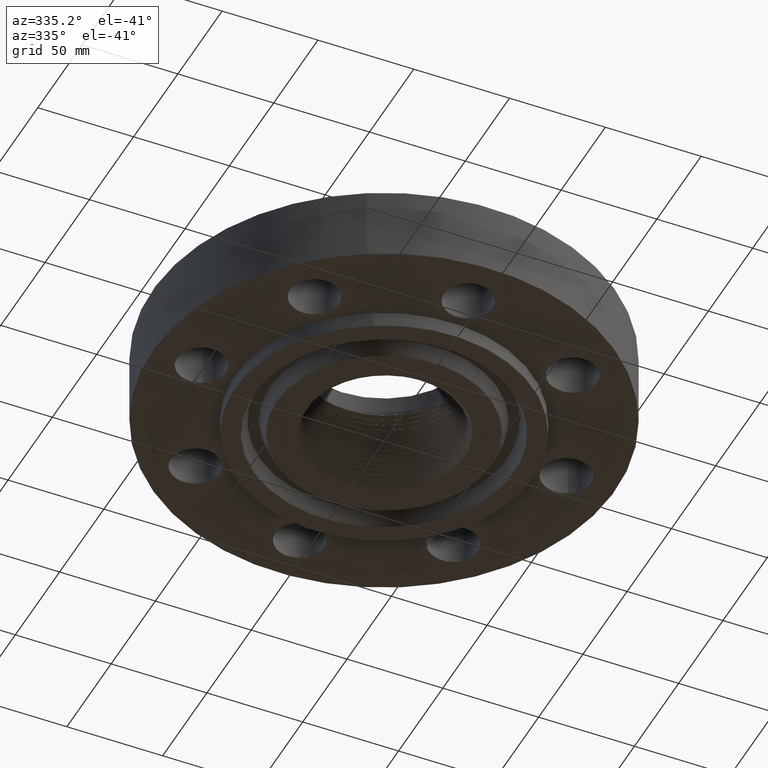
[diagram: clean part render]
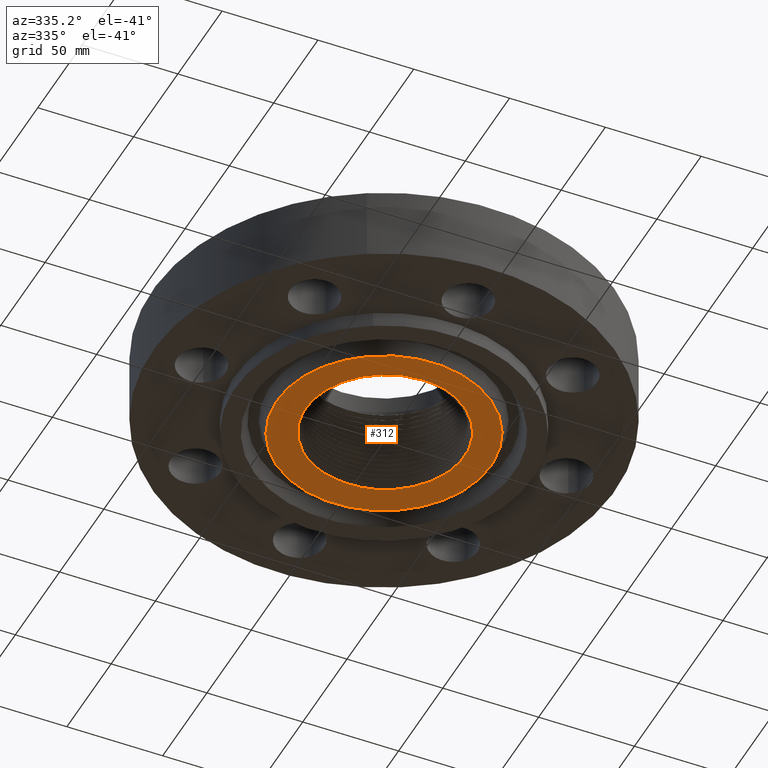
[diagram: same view with one face highlighted and labeled with its STEP entity id]
A machine part, auxiliary view. The second image highlights one B-rep face of the part: STEP entity #312.
In plain terms, the highlighted planar face has unit normal (0, 0, -1).
Its self-contained STEP definition (entity closure, byte-faithful):
#180=AXIS2_PLACEMENT_3D('Plane Axis2P3D',#177,#178,#179) ;
#184=AXIS2_PLACEMENT_3D('Circle Axis2P3D',#182,#183,$) ;
#193=AXIS2_PLACEMENT_3D('Circle Axis2P3D',#191,#192,$) ;
#300=AXIS2_PLACEMENT_3D('Circle Axis2P3D',#298,#299,$) ;
#177=CARTESIAN_POINT('Axis2P3D Location',(0.,0.,-0.312500000001)) ;
#182=CARTESIAN_POINT('Axis2P3D Location',(-2.79741234551E-016,-2.09805925913E-016,-0.312500000001)) ;
#186=CARTESIAN_POINT('Vertex',(-1.0562224041,1.93340214211,-0.312500000001)) ;
#188=CARTESIAN_POINT('Vertex',(1.0562224041,-1.93340214211,-0.312500000001)) ;
#191=CARTESIAN_POINT('Axis2P3D Location',(0.,1.39870617276E-016,-0.312500000001)) ;
#201=CARTESIAN_POINT('Control Point',(-0.764045136198,1.39863086369,-0.312500000001)) ;
#202=CARTESIAN_POINT('Control Point',(-0.684227951429,1.44028051207,-0.312500000001)) ;
#203=CARTESIAN_POINT('Control Point',(-0.60152243333,1.47626518171,-0.312500000001)) ;
#204=CARTESIAN_POINT('Control Point',(-0.516463407196,1.50631184712,-0.312500000001)) ;
#205=CARTESIAN_POINT('Control Point',(-0.42962532588,1.53022449648,-0.312500000001)) ;
#206=CARTESIAN_POINT('Control Point',(-0.341596641121,1.54789132813,-0.312500000001)) ;
#207=CARTESIAN_POINT('Vertex',(-0.764045136198,1.39863086369,-0.312500000001)) ;
#209=CARTESIAN_POINT('Vertex',(-0.341596681107,1.54789137755,-0.312500022808)) ;
#213=CARTESIAN_POINT('Control Point',(-4.24247231396E-006,-1.67387552204,-0.312500000001)) ;
#214=CARTESIAN_POINT('Control Point',(-0.134224530825,-1.67144198216,-0.312500000001)) ;
#215=CARTESIAN_POINT('Control Point',(-0.26808429547,-1.65555300793,-0.312500000001)) ;
#216=CARTESIAN_POINT('Control Point',(-0.399742150873,-1.62626517311,-0.312500000001)) ;
#217=CARTESIAN_POINT('Control Point',(-0.655176795,-1.54171205105,-0.312500000001)) ;
#218=CARTESIAN_POINT('Control Point',(-0.8880971913,-1.40828155489,-0.312500000001)) ;
#219=CARTESIAN_POINT('Control Point',(-0.997346285092,-1.33006545072,-0.312500000001)) ;
#220=CARTESIAN_POINT('Control Point',(-1.19840869766,-1.15285018385,-0.312500000001)) ;
#221=CARTESIAN_POINT('Control Point',(-1.35969398719,-0.939435093799,-0.312500000001)) ;
#222=CARTESIAN_POINT('Control Point',(-1.42919954157,-0.824977696152,-0.312500000001)) ;
#223=CARTESIAN_POINT('Control Point',(-1.54393641757,-0.583887789867,-0.312500000001)) ;
#224=CARTESIAN_POINT('Control Point',(-1.60786742992,-0.325027754984,-0.312500000001)) ;
#225=CARTESIAN_POINT('Control Point',(-1.62652038059,-0.192920434485,-0.312500000001)) ;
#226=CARTESIAN_POINT('Control Point',(-1.6341541153,0.00654499916701,-0.312500000001)) ;
#227=CARTESIAN_POINT('Control Point',(-1.61156519682,0.203898139981,-0.312500000001)) ;
#228=CARTESIAN_POINT('Control Point',(-1.60069948973,0.269187687087,-0.312500000001)) ;
#229=CARTESIAN_POINT('Control Point',(-1.55820655519,0.462931410085,-0.312500000001)) ;
#230=CARTESIAN_POINT('Control Point',(-1.48658270785,0.648413484583,-0.312500000001)) ;
#231=CARTESIAN_POINT('Control Point',(-1.42638992711,0.766626304015,-0.312500000001)) ;
#232=CARTESIAN_POINT('Control Point',(-1.28208737297,0.990042689045,-0.312500000001)) ;
#233=CARTESIAN_POINT('Control Point',(-1.09565641455,1.17906295094,-0.312500000001)) ;
#234=CARTESIAN_POINT('Control Point',(-0.992495860647,1.26392005425,-0.312500000001)) ;
#235=CARTESIAN_POINT('Control Point',(-0.881391379585,1.33739806278,-0.312500000001)) ;
#236=CARTESIAN_POINT('Control Point',(-0.764045136198,1.39863086369,-0.312500000001)) ;
#237=CARTESIAN_POINT('Vertex',(-4.24247231466E-006,-1.67387552204,-0.312500000001)) ;
#241=CARTESIAN_POINT('Control Point',(0.545381059272,-1.59311812307,-0.312500000001)) ;
#242=CARTESIAN_POINT('Control Point',(0.439805501715,-1.62714791651,-0.312500000001)) ;
#243=CARTESIAN_POINT('Control Point',(0.331501726328,-1.65245900067,-0.312500000001)) ;
#244=CARTESIAN_POINT('Control Point',(0.221424791367,-1.66875097735,-0.312500000001)) ;
#245=CARTESIAN_POINT('Control Point',(0.110587003885,-1.67588064556,-0.312500000001)) ;
#246=CARTESIAN_POINT('Control Point',(-4.24247231477E-006,-1.67387552204,-0.312500000001)) ;
#247=CARTESIAN_POINT('Vertex',(0.545381059272,-1.59311812307,-0.312500000001)) ;
#251=CARTESIAN_POINT('Control Point',(0.545381059272,-1.59311812307,-0.312500000001)) ;
#252=CARTESIAN_POINT('Control Point',(0.599185308358,-1.57349355165,-0.312500000001)) ;
#253=CARTESIAN_POINT('Control Point',(0.652132527607,-1.55158927789,-0.312500000001)) ;
#254=CARTESIAN_POINT('Control Point',(0.704093489724,-1.52745383678,-0.312500000001)) ;
#255=CARTESIAN_POINT('Control Point',(0.754942751533,-1.50114694288,-0.312500000001)) ;
#256=CARTESIAN_POINT('Control Point',(0.804560826023,-1.47273867143,-0.312500000001)) ;
#257=CARTESIAN_POINT('Vertex',(0.804560826023,-1.47273867143,-0.312500000001)) ;
#261=CARTESIAN_POINT('Control Point',(0.804560826023,-1.47273867143,-0.312500000001)) ;
#262=CARTESIAN_POINT('Control Point',(0.921182367755,-1.40596831727,-0.312500000001)) ;
#263=CARTESIAN_POINT('Control Point',(1.03100355149,-1.32758843056,-0.312500000001)) ;
#264=CARTESIAN_POINT('Control Point',(1.13246857639,-1.23850832963,-0.312500000001)) ;
#265=CARTESIAN_POINT('Control Point',(1.31595456069,-1.04140431418,-0.312500000001)) ;
#266=CARTESIAN_POINT('Control Point',(1.45625891427,-0.812190779136,-0.312500000001)) ;
#267=CARTESIAN_POINT('Control Point',(1.51454586059,-0.690990554184,-0.312500000001)) ;
#268=CARTESIAN_POINT('Control Point',(1.58869452424,-0.486049050667,-0.312500000001)) ;
#269=CARTESIAN_POINT('Control Point',(1.62830094846,-0.272774024449,-0.312500000001)) ;
#270=CARTESIAN_POINT('Control Point',(1.63831939421,-0.18994168638,-0.312500000001)) ;
#271=CARTESIAN_POINT('Control Point',(1.65069141603,0.026405411075,-0.312500000001)) ;
#272=CARTESIAN_POINT('Control Point',(1.62753349302,0.242073336625,-0.312500000001)) ;
#273=CARTESIAN_POINT('Control Point',(1.59985686189,0.372738394507,-0.312500000001)) ;
#274=CARTESIAN_POINT('Control Point',(1.51846177818,0.62643238309,-0.312500000001)) ;
#275=CARTESIAN_POINT('Control Point',(1.38804200196,0.857982466216,-0.312500000001)) ;
#276=CARTESIAN_POINT('Control Point',(1.31127804288,0.966638453406,-0.312500000001)) ;
#277=CARTESIAN_POINT('Control Point',(1.13691384698,1.16656791471,-0.312500000001)) ;
#278=CARTESIAN_POINT('Control Point',(0.926195972515,1.32685346384,-0.312500000001)) ;
#279=CARTESIAN_POINT('Control Point',(0.813084440391,1.39585491706,-0.312500000001)) ;
#280=CARTESIAN_POINT('Control Point',(0.588180175928,1.50312651497,-0.312500000001)) ;
#281=CARTESIAN_POINT('Control Point',(0.347513213958,1.56516778747,-0.312500000001)) ;
#282=CARTESIAN_POINT('Control Point',(0.232206924715,1.58390281734,-0.312500000001)) ;
#283=CARTESIAN_POINT('Control Point',(0.115921739827,1.59202841082,-0.312500000001)) ;
#284=CARTESIAN_POINT('Control Point',(-2.33430730224E-005,1.58958036245,-0.312500000001)) ;
#285=CARTESIAN_POINT('Vertex',(-2.33430730189E-005,1.58958036245,-0.312500000001)) ;
#289=CARTESIAN_POINT('Control Point',(-2.33430730189E-005,1.58958036245,-0.312500000001)) ;
#290=CARTESIAN_POINT('Control Point',(-0.0421246590496,1.58869144114,-0.312500000001)) ;
#291=CARTESIAN_POINT('Control Point',(-0.0841811924108,1.58640836179,-0.312500000001)) ;
#292=CARTESIAN_POINT('Control Point',(-0.126131243528,1.58273317416,-0.312500000001)) ;
#293=CARTESIAN_POINT('Control Point',(-0.16791326676,1.57767202938,-0.312500000001)) ;
#294=CARTESIAN_POINT('Control Point',(-0.209466435032,1.57123511353,-0.312500000001)) ;
#295=CARTESIAN_POINT('Vertex',(-0.209466428739,1.57123512871,-0.312499970231)) ;
#298=CARTESIAN_POINT('Axis2P3D Location',(2.79741234551E-016,1.39870617276E-016,-0.312500000001)) ;
#178=DIRECTION('Axis2P3D Direction',(0.,0.,-0.0393700787402)) ;
#179=DIRECTION('Axis2P3D XDirection',(0.0393700787402,0.,0.)) ;
#183=DIRECTION('Axis2P3D Direction',(0.,0.,-0.0393700787402)) ;
#192=DIRECTION('Axis2P3D Direction',(0.,0.,-0.0393700787402)) ;
#299=DIRECTION('Axis2P3D Direction',(0.,0.,-0.0393700787402)) ;
#197=ORIENTED_EDGE('',*,*,#190,.T.) ;
#198=ORIENTED_EDGE('',*,*,#195,.T.) ;
#304=ORIENTED_EDGE('',*,*,#211,.F.) ;
#305=ORIENTED_EDGE('',*,*,#239,.F.) ;
#306=ORIENTED_EDGE('',*,*,#249,.F.) ;
#307=ORIENTED_EDGE('',*,*,#259,.T.) ;
#308=ORIENTED_EDGE('',*,*,#287,.T.) ;
#309=ORIENTED_EDGE('',*,*,#297,.T.) ;
#310=ORIENTED_EDGE('',*,*,#302,.F.) ;
#311=FACE_BOUND('',#303,.T.) ;
#312=ADVANCED_FACE('PartBody',(#199,#311),#181,.T.) ;
#200=B_SPLINE_CURVE_WITH_KNOTS('',5,(#201,#202,#203,#204,#205,#206),.UNSPECIFIED.,.F.,.U.,(6,6),(0.,16.3705979618),.UNSPECIFIED.) ;
#212=B_SPLINE_CURVE_WITH_KNOTS('',5,(#213,#214,#215,#216,#217,#218,#219,#220,#221,#222,#223,#224,#225,#226,#227,#228,#229,#230,#231,#232,#233,#234,#235,#236),.UNSPECIFIED.,.F.,.U.,(6,3,3,3,3,3,3,6),(0.,23.8301686208,47.6813877021,71.5423769991,95.3798159291,107.289877062,131.104894935,155.172746724),.UNSPECIFIED.) ;
#240=B_SPLINE_CURVE_WITH_KNOTS('',5,(#241,#242,#243,#244,#245,#246),.UNSPECIFIED.,.F.,.U.,(6,6),(0.,19.6349455155),.UNSPECIFIED.) ;
#250=B_SPLINE_CURVE_WITH_KNOTS('',5,(#251,#252,#253,#254,#255,#256),.UNSPECIFIED.,.F.,.U.,(6,6),(0.,10.137814977),.UNSPECIFIED.) ;
#260=B_SPLINE_CURVE_WITH_KNOTS('',5,(#261,#262,#263,#264,#265,#266,#267,#268,#269,#270,#271,#272,#273,#274,#275,#276,#277,#278,#279,#280,#281,#282,#283,#284),.UNSPECIFIED.,.F.,.U.,(6,3,3,3,3,3,3,6),(0.,23.82776083,47.657403621,62.5510886346,86.3961672282,110.268594028,134.139040884,155.278618309),.UNSPECIFIED.) ;
#288=B_SPLINE_CURVE_WITH_KNOTS('',5,(#289,#290,#291,#292,#293,#294),.UNSPECIFIED.,.F.,.U.,(6,6),(0.,7.67608256013),.UNSPECIFIED.) ;
#185=CIRCLE('generated circle',#184,2.20310000001) ;
#194=CIRCLE('generated circle',#193,2.20310000001) ;
#301=CIRCLE('generated circle',#300,1.58513595994) ;
#190=EDGE_CURVE('',#187,#189,#185,.T.) ;
#195=EDGE_CURVE('',#189,#187,#194,.T.) ;
#211=EDGE_CURVE('',#208,#210,#200,.T.) ;
#239=EDGE_CURVE('',#238,#208,#212,.T.) ;
#249=EDGE_CURVE('',#248,#238,#240,.T.) ;
#259=EDGE_CURVE('',#248,#258,#250,.T.) ;
#287=EDGE_CURVE('',#258,#286,#260,.T.) ;
#297=EDGE_CURVE('',#286,#296,#288,.T.) ;
#302=EDGE_CURVE('',#210,#296,#301,.T.) ;
#196=EDGE_LOOP('',(#197,#198)) ;
#303=EDGE_LOOP('',(#304,#305,#306,#307,#308,#309,#310)) ;
#199=FACE_OUTER_BOUND('',#196,.T.) ;
#181=PLANE('',#180) ;
#187=VERTEX_POINT('',#186) ;
#189=VERTEX_POINT('',#188) ;
#208=VERTEX_POINT('',#207) ;
#210=VERTEX_POINT('',#209) ;
#238=VERTEX_POINT('',#237) ;
#248=VERTEX_POINT('',#247) ;
#258=VERTEX_POINT('',#257) ;
#286=VERTEX_POINT('',#285) ;
#296=VERTEX_POINT('',#295) ;